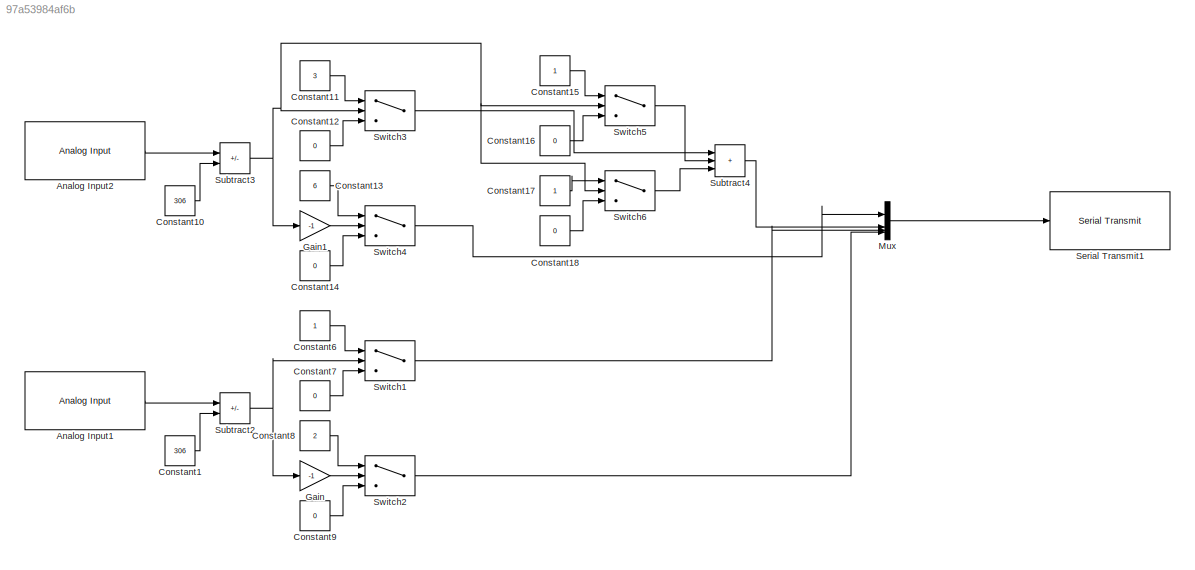
MODEL slx_97a53984af6b
KIND model
CONFIG AbsTol = auto
CONFIG EnableMultiTasking = on
CONFIG FixedStep = 0.01
CONFIG MaxStep = auto
CONFIG MinStep = auto
CONFIG RelTol = 1e-3
CONFIG SampleTimeConstraint = Unconstrained
CONFIG SolverName = FixedStepAuto
CONFIG StartTime = 0.0
CONFIG StopTime = inf
BLOCK [Reference] Analog Input1  REF=arduinolib/Analog Input
  SourceBlock = arduinolib/Analog Input
  SourceType = Arduino Analog Input
BLOCK [Reference] Analog Input2  REF=arduinolib/Analog Input
  SourceBlock = arduinolib/Analog Input
  SourceType = Arduino Analog Input
BLOCK [Constant] Constant1
  Value = 306
BLOCK [Constant] Constant10
  Value = 306
BLOCK [Constant] Constant11
  Value = 3
BLOCK [Constant] Constant12
  Value = 0
BLOCK [Constant] Constant13
  Value = 6
BLOCK [Constant] Constant14
  Value = 0
BLOCK [Constant] Constant15
BLOCK [Constant] Constant16
  Value = 0
BLOCK [Constant] Constant17
BLOCK [Constant] Constant18
  Value = 0
BLOCK [Constant] Constant6
BLOCK [Constant] Constant7
  Value = 0
BLOCK [Constant] Constant8
  Value = 2
BLOCK [Constant] Constant9
  Value = 0
BLOCK [Gain] Gain
  Gain = -1
BLOCK [Gain] Gain1
  Gain = -1
BLOCK [Mux] Mux
  DisplayOption = bar
BLOCK [Reference] Serial Transmit1  REF=arduinolib/Serial Transmit
  SourceBlock = arduinolib/Serial Transmit
  SourceType = Arduino Serial Transmit
BLOCK [Sum] Subtract2
  IconShape = rectangular
  Inputs = +-
BLOCK [Sum] Subtract3
  IconShape = rectangular
  Inputs = +-
BLOCK [Sum] Subtract4
  IconShape = rectangular
  Inputs = +++
BLOCK [Switch] Switch1
  Criteria = u2 > Threshold
  InputSameDT = off
  SaturateOnIntegerOverflow = off
  Threshold = 10
BLOCK [Switch] Switch2
  Criteria = u2 > Threshold
  InputSameDT = off
  SaturateOnIntegerOverflow = off
  Threshold = 10
BLOCK [Switch] Switch3
  Criteria = u2 > Threshold
  InputSameDT = off
  SaturateOnIntegerOverflow = off
  Threshold = 10
BLOCK [Switch] Switch4
  Criteria = u2 > Threshold
  InputSameDT = off
  SaturateOnIntegerOverflow = off
  Threshold = 10
BLOCK [Switch] Switch5
  Criteria = u2 > Threshold
  InputSameDT = off
  SaturateOnIntegerOverflow = off
  Threshold = 27
BLOCK [Switch] Switch6
  Criteria = u2 > Threshold
  InputSameDT = off
  SaturateOnIntegerOverflow = off
  Threshold = 44
LINE Analog Input1:1 -> Subtract2:1
LINE Analog Input2:1 -> Subtract3:1
LINE Constant10:1 -> Subtract3:2
LINE Constant11:1 -> Switch3:1
LINE Constant12:1 -> Switch3:3
LINE Constant13:1 -> Switch4:1
LINE Constant14:1 -> Switch4:3
LINE Constant15:1 -> Switch5:1
LINE Constant16:1 -> Switch5:3
LINE Constant17:1 -> Switch6:1
LINE Constant18:1 -> Switch6:3
LINE Constant1:1 -> Subtract2:2
LINE Constant6:1 -> Switch1:1
LINE Constant7:1 -> Switch1:3
LINE Constant8:1 -> Switch2:1
LINE Constant9:1 -> Switch2:3
LINE Gain1:1 -> Switch4:2
LINE Gain:1 -> Switch2:2
LINE Mux:1 -> Serial Transmit1:1
NET Subtract2:1 -> Gain:1, Switch1:2
NET Subtract3:1 -> Gain1:1, Switch3:2, Switch5:2, Switch6:2
LINE Subtract4:1 -> Mux:2
LINE Switch1:1 -> Mux:3
LINE Switch2:1 -> Mux:4
LINE Switch3:1 -> Subtract4:1
LINE Switch4:1 -> Mux:1
LINE Switch5:1 -> Subtract4:2
LINE Switch6:1 -> Subtract4:3
note: NET lines group one-source signal fan-out (src -> all destinations, sorted); 1:1 wires keep LINE
